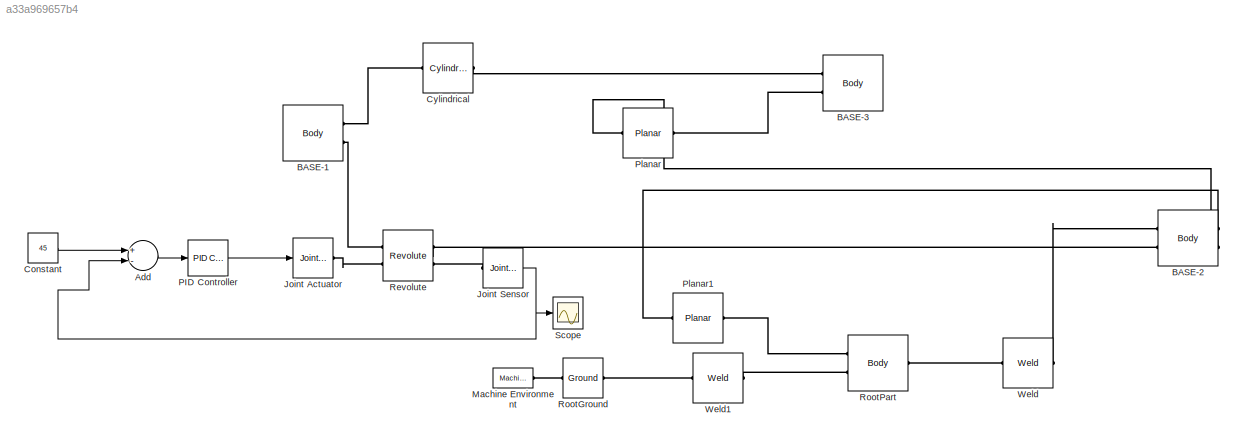
MODEL slx_a33a969657b4
KIND model
CONFIG AbsTol = auto
CONFIG FixedStep = auto
CONFIG MaxStep = auto
CONFIG MinStep = auto
CONFIG RelTol = 1e-3
CONFIG SampleTimeConstraint = Unconstrained
CONFIG Solver = ode45
CONFIG SolverMode = Auto
CONFIG SolverName = ode45
CONFIG StartTime = 0.0
CONFIG StopTime = 10.0
BLOCK [Sum] Add
  InputSameDT = off
  Inputs = +-
  OutDataTypeStr = Inherit: Inherit via internal rule
  Ports = [2, 1]
  SaturateOnIntegerOverflow = off
BLOCK [Reference] BASE-1  REF=mblibv1/Bodies/Body
  AttachedToCS = CS1
  BodyColor = [0.792157;0.819608;0.933333]
  BodyColorSelMode = COLORPALETTE
  CG = Right$CG$[-0.0707007 0.0450815 0.0472098]$WORLD$WORLD$m$[1 0 0;0 0 -1;0 1 0]$3x3 Transform$rad$WORLD$false$BASE-1::CG(AUTOGEN)
  CGPos = [-0.0707007 0.0450815 0.0472098]
  CGRot = [1 0 0;0 0 -1;0 1 0]
  CS0Pos = []
  CS0Rot = []
  CS10Pos = []
  CS10Rot = []
  CS11Pos = []
  CS11Rot = []
  CS12Pos = []
  CS12Rot = []
  CS13Pos = []
  CS13Rot = []
  CS14Pos = []
  CS14Rot = []
  CS15Pos = []
  CS15Rot = []
  CS16Pos = []
  CS16Rot = []
  CS17Pos = []
  CS17Rot = []
  CS18Pos = []
  CS18Rot = []
  CS19Pos = []
  CS19Rot = []
  CS1Pos = [-0.0707007 0.0450815 0.0297098]
  CS1Rot = [1 0 0;0 0 -1;0 1 0]
  CS20Pos = []
  CS20Rot = []
  CS2Pos = [-0.0707007 0.0450815 0.0297098]
  CS2Rot = [1 0 0;0 1 0;0 0 1]
  CS3Pos = [-0.0707007 0.0450815 0.0647098]
  CS3Rot = [1 0 0;0 1 0;0 0 1]
  CS4Pos = []
  CS4Rot = []
  CS5Pos = []
  CS5Rot = []
  CS6Pos = []
  CS6Rot = []
  CS7Pos = []
  CS7Rot = []
  CS8Pos = []
  CS8Rot = []
  CS9Pos = []
  CS9Rot = []
  ClassName = Body
  Density = 1
  DensityUnits = kg/m^3
  DensityUse = false
  DialogClass = MechanicalBodyBlock
  GraphicsFileName = Ensamblaje1 - BASE-1.STL
  GraphicsMode = GFXFILE
  Inertia = [2.42497e-06,0,0;0,1.34223e-06,0;0,0,2.42497e-06]
  InertiaUnits = kg*m^2
  Mass = 0.0171806
  MassUnits = kg
  PMImportedID = BASE-1
  Ports = [0, 0, 0, 0, 0, 0, 2]
  RConnTagsString = CS2|CS3
  Shape = Cylinder
  ShapeDims = [1 1]
  ShapeUnits = m
  ShapeUse = false
  SourceBlock = mblibv1/Bodies/Body
  SourceType = Body
  UpdateFromCAD = on
  WorkingFrames = Right$CS1$[-0.0707007 0.0450815 0.0297098]$WORLD$WORLD$m$[1 0 0;0 0 -1;0 1 0]$3x3 Transform$rad$WORLD$false$BASE-1::CS1(AUTOGEN)#Right$CS2$[-0.0707007 0.0450815 0.0297098]$WORLD$WORLD$m$[1 0 0;0 1 0;0 0 1]$3x3 Transform$rad$WORLD$true$BASE-1:-:BASE-3::BASE-1(AUTOGEN)#Right$CS3$[-0.0707007 0.0450815 0.0647098]$WORLD$WORLD$m$[1 0 0;0 1 0;0 0 1]$3x3 Transform$rad$WORLD$true$BASE-1:-:BASE-2::BASE-1(AU...<+6ch>
BLOCK [Reference] BASE-2  REF=mblibv1/Bodies/Body
  AttachedToCS = CS1
  BodyColor = [0.792157;0.819608;0.933333]
  BodyColorSelMode = COLORPALETTE
  CG = Right$CG$[-0.0707007 0.0307686 0.0547098]$WORLD$WORLD$m$[1 0 0;0 0 -1;0 1 0]$3x3 Transform$rad$WORLD$false$BASE-2::CG(AUTOGEN)
  CGPos = [-0.0707007 0.0307686 0.0547098]
  CGRot = [1 0 0;0 0 -1;0 1 0]
  CS0Pos = []
  CS0Rot = []
  CS10Pos = []
  CS10Rot = []
  CS11Pos = []
  CS11Rot = []
  CS12Pos = []
  CS12Rot = []
  CS13Pos = []
  CS13Rot = []
  CS14Pos = []
  CS14Rot = []
  CS15Pos = []
  CS15Rot = []
  CS16Pos = []
  CS16Rot = []
  CS17Pos = []
  CS17Rot = []
  CS18Pos = []
  CS18Rot = []
  CS19Pos = []
  CS19Rot = []
  CS1Pos = [-0.0702215 0.025 0.0447098]
  CS1Rot = [1 0 0;0 0 -1;0 1 0]
  CS20Pos = []
  CS20Rot = []
  CS2Pos = [-0.0707007 0.0307686 0.0547098]
  CS2Rot = [1 0 0;0 1 0;0 0 1]
  CS3Pos = [-0.0707007 0.0450815 0.0447098]
  CS3Rot = [1 0 0;0 1 0;0 0 1]
  CS4Pos = [-0.0707007 0.0450815 0.0647098]
  CS4Rot = [1 0 0;0 1 0;0 0 1]
  CS5Pos = [-0.0457007 0 0.0647098]
  CS5Rot = [1 0 0;0 1 0;0 0 1]
  CS6Pos = []
  CS6Rot = []
  CS7Pos = []
  CS7Rot = []
  CS8Pos = []
  CS8Rot = []
  CS9Pos = []
  CS9Rot = []
  ClassName = Body
  Density = 1
  DensityUnits = kg/m^3
  DensityUse = false
  DialogClass = MechanicalBodyBlock
  GraphicsFileName = Ensamblaje1 - BASE-2.STL
  GraphicsMode = GFXFILE
  Inertia = [2.39304e-05,0,0;0,3.43558e-05,0;0,0,1.41318e-05]
  InertiaUnits = kg*m^2
  LConnTagsString = CS2|CS4
  Mass = 0.055596
  MassUnits = kg
  PMImportedID = BASE-2
  Ports = [0, 0, 0, 0, 0, 2, 2]
  RConnTagsString = CS3|CS5
  Shape = Cylinder
  ShapeDims = [1 1]
  ShapeUnits = m
  ShapeUse = false
  SourceBlock = mblibv1/Bodies/Body
  SourceType = Body
  UpdateFromCAD = on
  WorkingFrames = Right$CS1$[-0.0702215 0.025 0.0447098]$WORLD$WORLD$m$[1 0 0;0 0 -1;0 1 0]$3x3 Transform$rad$WORLD$false$BASE-2::CS1(AUTOGEN)#Left$CS2$[-0.0707007 0.0307686 0.0547098]$WORLD$WORLD$m$[1 0 0;0 1 0;0 0 1]$3x3 Transform$rad$WORLD$true$BASE-2:-:Ensamblaje1/RootPart::BASE-2(AUTOGEN)#Right$CS3$[-0.0707007 0.0450815 0.0447098]$WORLD$WORLD$m$[1 0 0;0 1 0;0 0 1]$3x3 Transform$rad$WORLD$true$BASE-2:-:BASE-3::...<+292ch>
BLOCK [Reference] BASE-3  REF=mblibv1/Bodies/Body
  AttachedToCS = CS1
  BodyColor = [0.792157;0.819608;0.933333]
  BodyColorSelMode = COLORPALETTE
  CG = Right$CG$[-0.0535106 0.0755692 0.0347098]$WORLD$WORLD$m$[-0.650753 0 0.75929;-0.75929 0 -0.650753;0 -1 0]$3x3 Transform$rad$WORLD$false$BASE-3::CG(AUTOGEN)
  CGPos = [-0.0535106 0.0755692 0.0347098]
  CGRot = [-0.650753 0 0.75929;-0.75929 0 -0.650753;0 -1 0]
  CS0Pos = []
  CS0Rot = []
  CS10Pos = []
  CS10Rot = []
  CS11Pos = []
  CS11Rot = []
  CS12Pos = []
  CS12Rot = []
  CS13Pos = []
  CS13Rot = []
  CS14Pos = []
  CS14Rot = []
  CS15Pos = []
  CS15Rot = []
  CS16Pos = []
  CS16Rot = []
  CS17Pos = []
  CS17Rot = []
  CS18Pos = []
  CS18Rot = []
  CS19Pos = []
  CS19Rot = []
  CS1Pos = [-0.0363204 0.106057 0.0447098]
  CS1Rot = [-0.650753 0 0.75929;-0.75929 0 -0.650753;0 -1 0]
  CS20Pos = []
  CS20Rot = []
  CS2Pos = [-0.0707007 0.0450815 0.0297098]
  CS2Rot = [1 0 0;0 1 0;0 0 1]
  CS3Pos = [-0.0707007 0.0450815 0.0447098]
  CS3Rot = [1 0 0;0 1 0;0 0 1]
  CS4Pos = []
  CS4Rot = []
  CS5Pos = []
  CS5Rot = []
  CS6Pos = []
  CS6Rot = []
  CS7Pos = []
  CS7Rot = []
  CS8Pos = []
  CS8Rot = []
  CS9Pos = []
  CS9Rot = []
  ClassName = Body
  Density = 1
  DensityUnits = kg/m^3
  DensityUse = false
  DialogClass = MechanicalBodyBlock
  GraphicsFileName = Ensamblaje1 - BASE-3.STL
  GraphicsMode = GFXFILE
  Inertia = [2.54682e-05,0,-1.27885e-05;0,0.000107124,0;-1.27885e-05,0,8.76315e-05]
  InertiaUnits = kg*m^2
  LConnTagsString = CS2|CS3
  Mass = 0.089635
  MassUnits = kg
  PMImportedID = BASE-3
  Ports = [0, 0, 0, 0, 0, 2]
  Shape = Cylinder
  ShapeDims = [1 1]
  ShapeUnits = m
  ShapeUse = false
  SourceBlock = mblibv1/Bodies/Body
  SourceType = Body
  UpdateFromCAD = on
  WorkingFrames = Right$CS1$[-0.0363204 0.106057 0.0447098]$WORLD$WORLD$m$[-0.650753 0 0.75929;-0.75929 0 -0.650753;0 -1 0]$3x3 Transform$rad$WORLD$false$BASE-3::CS1(AUTOGEN)#Left$CS2$[-0.0707007 0.0450815 0.0297098]$WORLD$WORLD$m$[1 0 0;0 1 0;0 0 1]$3x3 Transform$rad$WORLD$true$BASE-1:-:BASE-3::BASE-3(AUTOGEN)#Left$CS3$[-0.0707007 0.0450815 0.0447098]$WORLD$WORLD$m$[1 0 0;0 1 0;0 0 1]$3x3 Transform$rad$WORLD$true$...<+32ch>
BLOCK [Constant] Constant
  Value = 45
BLOCK [Reference] Cylindrical  REF=mblibv1/Joints/Cylindrical
  ClassName = CylindricalJoint
  CutJoint = off
  DialogClass = JointBlock
  LConnTagsString = __newl0
  MarkAsCut = off
  NumSAPorts = 0
  P1Axis = [0,0,-1]
  PMImportedID = BASE-1:-:BASE-3
  Ports = [0, 0, 0, 0, 0, 1, 1]
  PrimitiveProps = P1$WORLD$[0,0,-1]$prismatic#R1$WORLD$[0,0,1]$revolute
  Primitives = prismatic
  R1Axis = [0,0,1]
  RConnTagsString = __newr0
  SourceBlock = mblibv1/Joints/Cylindrical
  SourceType = Cylindrical
  UpdateFromCAD = on
BLOCK [Reference] Joint Actuator  REF=mblibv1/Sensors & 
Actuators/Joint Actuator
  AccelerationUnits = m/s^2
  ActiveIO = on
  ActuationStyle = Force
  AngleUnits = deg
  ArcAccelerationUnits = deg/s^2
  ArcVelocityUnits = deg/s
  ClassName = JointActuator
  CoordPositionUnits = m
  DialogClass = MechanicalActuatorBlock
  ForceUnits = N
  PhysicalDomain = Mechanical
  PortType = blob
  Ports = [1, 0, 0, 0, 0, 0, 1]
  Primitive = R1
  ReferenceFrame = Absolute (World)
  SourceBlock = mblibv1/Sensors & \nActuators/Joint Actuator
  SourceType = Joint Actuator
  TorqueUnits = N-m
  UpdateFromCAD = off
  VelocityUnits = m/s
  Width = 1
BLOCK [Reference] Joint Sensor  REF=mblibv1/Sensors & 
Actuators/Joint Sensor
  Acceleration = off
  AccelerationUnits = m/s^2
  ActiveIO = on
  Angle = on
  AngleUnits = deg
  ArcAcceleration = off
  ArcAccelerationUnits = deg/s^2
  ArcVelocity = off
  ArcVelocityUnits = deg/s
  ClassName = JointSensor
  CoordPosition = on
  CoordPositionUnits = m
  DialogClass = MechanicalSensorBlock
  Force = off
  ForceUnits = N
  Muxed = on
  OutputVector = [1]
  PhysicalDomain = Mechanical
  PortType = blob
  Ports = [0, 1, 0, 0, 0, 1]
  Pose = off
  Primitive = R1
  Quaternion = on
  QuaternionDDT = off
  QuaternionDT = off
  QuaternionUnits = off
  ReactionForce = off
  ReactionForceUnits = N
  ReactionMoment = off
  ReactionMomentUnits = N-m
  ReactionReferenceFrame = Absolute (World)
  ReactionSensedSide = Base
  ReferenceFrame = Absolute (World)
  SourceBlock = mblibv1/Sensors & \nActuators/Joint Sensor
  SourceType = Joint Sensor
  Torque = off
  TorqueUnits = N-m
  UpdateFromCAD = off
  Velocity = off
  VelocityUnits = m/s
  Width = 1
BLOCK [Reference] Machine Environment  REF=mblibv1/Bodies/Machine
Environment
  AnalysisType = Forward dynamics
  AngularAssemblyTolerance = 1e-3
  AngularAssemblyToleranceUnits = rad
  BodyColorSelMode = Use model default
  BodyVisualizationType = Use model default body geometries
  ClassName = Environment
  ConstraintAbsTolerance = 1e-4
  ConstraintRelTolerance = 1e-4
  ConstraintSolverType = Stabilizing
  DefaultBodyColor = [1 0 0]
  DialogTemplateClass = MECH.MachineEnvironment
  Dimensionality = Auto-detect
  Gravity = [0 -9.81 0]
  GravityAsSignal = off
  GravityUnits = m/s^2
  LinearAssemblyTolerance = 1e-3
  LinearAssemblyToleranceUnits = m
  PerturbationSize = 1e-5
  PhysicalDomain = Mechanical
  PortType = env
  Ports = [0, 0, 0, 0, 0, 0, 1]
  RedundancyAnalysisTolerance = 1e-14
  RedundancyAnalysisToleranceType = Automatically select tolerance
  SourceBlock = mblibv1/Bodies/Machine\nEnvironment
  SourceType = Machine Environment
  StatePerturbationType = Fixed
  SyncWhenCopied = off
  UseRobustSingularityHandling = off
  VisualizeMachine = on
BLOCK [Reference] PID Controller  REF=simulink/Continuous/PID Controller
  AntiWindupMode = none
  Controller = PID
  ControllerParametersSource = internal
  D = 1
  DGainOutDataTypeStr = Inherit: Inherit via internal rule
  DOutDataTypeStr = Inherit: Inherit via internal rule
  DOutMax = []
  DOutMin = []
  DParamDataTypeStr = Inherit: Inherit via internal rule
  DParamMax = []
  DParamMin = []
  DProdOutDataTypeStr = Inherit: Inherit via internal rule
  DifferentiatorICPrevScaledInput = 0
  DifferentiatorOutDataTypeStr = Inherit: Inherit via internal rule
  DifferentiatorOutMax = []
  DifferentiatorOutMin = []
  ExternalReset = none
  FilterContinuousStateAttributes = ''
  FilterMethod = Forward Euler
  FilterOutDataTypeStr = Inherit: Inherit via internal rule
  FilterOutMax = []
  FilterOutMin = []
  FilterRTWStateStorageClass = Auto
  FilterStateMustResolveToSignalObject = off
  Form = Parallel
  I = 1
  IGainOutDataTypeStr = Inherit: Inherit via internal rule
  IOutDataTypeStr = Inherit: Inherit via internal rule
  IOutMax = []
  IOutMin = []
  IParamDataTypeStr = Inherit: Inherit via internal rule
  IParamMax = []
  IParamMin = []
  IProdOutDataTypeStr = Inherit: Inherit via internal rule
  IgnoreLimit = off
  InitialConditionForFilter = 0
  InitialConditionForIntegrator = 0
  InitialConditionSource = internal
  IntegratorContinuousStateAttributes = ''
  IntegratorMethod = Forward Euler
  IntegratorOutDataTypeStr = Inherit: Inherit via internal rule
  IntegratorOutMax = []
  IntegratorOutMin = []
  IntegratorRTWStateStorageClass = Auto
  IntegratorStateMustResolveToSignalObject = off
  Kb = 1
  KbOutDataTypeStr = Inherit: Inherit via internal rule
  KbOutMax = []
  KbOutMin = []
  KbParamDataTypeStr = Inherit: Inherit via internal rule
  KbParamMax = []
  KbParamMin = []
  Kt = 1
  KtOutDataTypeStr = Inherit: Inherit via internal rule
  KtOutMax = []
  KtOutMin = []
  KtParamDataTypeStr = Inherit: Inherit via internal rule
  KtParamMax = []
  KtParamMin = []
  LimitOutput = off
  LinearizeAsGain = on
  LockScale = off
  LowerSaturationLimit = -inf
  N = 100
  NGainOutDataTypeStr = Inherit: Inherit via internal rule
  NOutDataTypeStr = Inherit: Inherit via internal rule
  NOutMax = []
  NOutMin = []
  NParamDataTypeStr = Inherit: Inherit via internal rule
  NParamMax = []
  NParamMin = []
  NProdOutDataTypeStr = Inherit: Inherit via internal rule
  P = 1
  PGainOutDataTypeStr = Inherit: Inherit via internal rule
  POutDataTypeStr = Inherit: Inherit via internal rule
  POutMax = []
  POutMin = []
  PParamDataTypeStr = Inherit: Inherit via internal rule
  PParamMax = []
  PParamMin = []
  PProdOutDataTypeStr = Inherit: Inherit via internal rule
  Ports = [1, 1]
  RndMeth = Floor
  SampleTime = -1
  SaturateOnIntegerOverflow = off
  SaturationOutDataTypeStr = Inherit: Same as input
  SaturationOutMax = []
  SaturationOutMin = []
  SourceBlock = simulink/Continuous/PID Controller
  SourceType = PID 1dof
  SumAccumDataTypeStr = Inherit: Inherit via internal rule
  SumDAccumDataTypeStr = Inherit: Inherit via internal rule
  SumDOutDataTypeStr = Inherit: Inherit via internal rule
  SumDOutMax = []
  SumDOutMin = []
  SumI1AccumDataTypeStr = Inherit: Inherit via internal rule
  SumI1OutDataTypeStr = Inherit: Inherit via internal rule
  SumI1OutMax = []
  SumI1OutMin = []
  SumI2AccumDataTypeStr = Inherit: Inherit via internal rule
  SumI2OutDataTypeStr = Inherit: Inherit via internal rule
  SumI2OutMax = []
  SumI2OutMin = []
  SumI3AccumDataTypeStr = Inherit: Inherit via internal rule
  SumI3OutDataTypeStr = Inherit: Inherit via internal rule
  SumI3OutMax = []
  SumI3OutMin = []
  SumOutDataTypeStr = Inherit: Inherit via internal rule
  SumOutMax = []
  SumOutMin = []
  TimeDomain = Continuous-time
  TrackingMode = off
  UpperSaturationLimit = inf
  UseFilter = on
  ZeroCross = on
BLOCK [Reference] Planar  REF=mblibv1/Joints/Planar
  ClassName = PlanarJoint
  CutJoint = off
  DialogClass = JointBlock
  LConnTagsString = __newl0
  MarkAsCut = off
  NumSAPorts = 0
  P1Axis = [-1,0,0]
  P2Axis = [0,-1,0]
  PMImportedID = BASE-2:-:BASE-3
  Ports = [0, 0, 0, 0, 0, 1, 1]
  PrimitiveProps = P1$WORLD$[-1,0,0]$prismatic#P2$WORLD$[0,-1,0]$prismatic#R1$WORLD$[0,0,-1]$revolute
  Primitives = prismatic_prismatic
  R1Axis = [0,0,-1]
  RConnTagsString = __newr0
  SourceBlock = mblibv1/Joints/Planar
  SourceType = Planar
  UpdateFromCAD = on
BLOCK [Reference] Planar1  REF=mblibv1/Joints/Planar
  ClassName = PlanarJoint
  CutJoint = off
  DialogClass = JointBlock
  LConnTagsString = __newl0
  MarkAsCut = off
  NumSAPorts = 0
  P1Axis = [-1,0,0]
  P2Axis = [0,0,1]
  PMImportedID = :-:Ensamblaje1/RootPart
  Ports = [0, 0, 0, 0, 0, 1, 1]
  PrimitiveProps = P1$WORLD$[-1,0,0]$prismatic#P2$WORLD$[0,0,1]$prismatic#R1$WORLD$[0,-1,0]$revolute
  Primitives = prismatic_prismatic
  R1Axis = [0,-1,0]
  RConnTagsString = __newr0
  SourceBlock = mblibv1/Joints/Planar
  SourceType = Planar
  UpdateFromCAD = on
BLOCK [Reference] Revolute  REF=mblibv1/Joints/Revolute
  ClassName = Joint
  CutJoint = off
  DialogClass = JointBlock
  LConnTagsString = __newl0|SA1
  MarkAsCut = off
  NumSAPorts = 2
  PMImportedID = BASE-1:-:BASE-2
  Ports = [0, 0, 0, 0, 0, 2, 2]
  PrimitiveProps = R1$World$[0,0,1]$revolute
  Primitives = prismatic
  R1Axis = [0,0,1]
  RConnTagsString = __newr0|SA1
  SourceBlock = mblibv1/Joints/Revolute
  SourceType = Revolute
  UpdateFromCAD = on
BLOCK [Reference] RootGround  REF=mblibv1/Bodies/Ground
  ClassName = Ground
  CoordPosition = [-0.0612135,0.0570081,0.0428785]
  CoordPositionUnits = m
  DialogClass = GroundBlock
  LeftPortType = env
  MachineId = [1 0]
  PMImportedID = RootGround
  ParameterChecksum = [3105708821, 3775280186, 3027250476, 4258313790]
  PhysicalDomain = Mechanical
  Ports = [0, 0, 0, 0, 0, 1, 1]
  RightPortType = workingframe
  ShowEnvPort = on
  SourceBlock = mblibv1/Bodies/Ground
  SourceType = Ground
  StateVectorMgrId = 0
  TopologyChecksum = [1894176247, 3658313687, 2527774705, 1067019164]
  UpdateFromCAD = on
  UserDataPersistent = on
BLOCK [Reference] RootPart  REF=mblibv1/Bodies/Body
  AttachedToCS = CS1
  BodyColor = [1;0;0]
  BodyColorSelMode = MACHINE_DEFAULT
  CG = Right$CG$[-0.0612135 0.0570081 0.0428785]$WORLD$WORLD$m$[1 0 0;0 1 0;0 0 1]$3x3 Transform$rad$WORLD$false$Ensamblaje1/RootPart::CG(AUTOGEN)
  CGPos = [-0.0612135 0.0570081 0.0428785]
  CGRot = [1 0 0;0 1 0;0 0 1]
  CS0Pos = []
  CS0Rot = []
  CS10Pos = []
  CS10Rot = []
  CS11Pos = []
  CS11Rot = []
  CS12Pos = []
  CS12Rot = []
  CS13Pos = []
  CS13Rot = []
  CS14Pos = []
  CS14Rot = []
  CS15Pos = []
  CS15Rot = []
  CS16Pos = []
  CS16Rot = []
  CS17Pos = []
  CS17Rot = []
  CS18Pos = []
  CS18Rot = []
  CS19Pos = []
  CS19Rot = []
  CS1Pos = [0 0 0]
  CS1Rot = [1 0 0;0 1 0;0 0 1]
  CS20Pos = []
  CS20Rot = []
  CS2Pos = [-0.0707007 0.0307686 0.0547098]
  CS2Rot = [1 0 0;0 1 0;0 0 1]
  CS3Pos = [-0.0457007 0 0.0647098]
  CS3Rot = [1 0 0;0 1 0;0 0 1]
  CS4Pos = [-0.0612135 0.0570081 0.0428785]
  CS4Rot = [1 0 0;0 1 0;0 0 1]
  CS5Pos = []
  CS5Rot = []
  CS6Pos = []
  CS6Rot = []
  CS7Pos = []
  CS7Rot = []
  CS8Pos = []
  CS8Rot = []
  CS9Pos = []
  CS9Rot = []
  ClassName = Body
  Density = 1
  DensityUnits = kg/m^3
  DensityUse = false
  DialogClass = MechanicalBodyBlock
  GraphicsMode = MACHINE_DEFAULT
  Inertia = [0,0,0;0,0,0;0,0,0]
  InertiaUnits = kg*m^2
  LConnTagsString = CS3|CS4
  Mass = 0
  MassUnits = kg
  PMImportedID = Ensamblaje1/RootPart
  Ports = [0, 0, 0, 0, 0, 2, 1]
  RConnTagsString = CS2
  Shape = Cylinder
  ShapeDims = [1 1]
  ShapeUnits = m
  ShapeUse = false
  SourceBlock = mblibv1/Bodies/Body
  SourceType = Body
  UpdateFromCAD = on
  WorkingFrames = Right$CS1$[0 0 0]$WORLD$WORLD$m$[1 0 0;0 1 0;0 0 1]$3x3 Transform$rad$WORLD$false$Ensamblaje1/RootPart::CS1(AUTOGEN)#Right$CS2$[-0.0707007 0.0307686 0.0547098]$WORLD$WORLD$m$[1 0 0;0 1 0;0 0 1]$3x3 Transform$rad$WORLD$true$BASE-2:-:Ensamblaje1/RootPart::Ensamblaje1/RootPart(AUTOGEN)#Left$CS3$[-0.0457007 0 0.0647098]$WORLD$WORLD$m$[1 0 0;0 1 0;0 0 1]$3x3 Transform$rad$WORLD$true$:-:Ensamblaje1/Root...<+205ch>
BLOCK [Scope] Scope
  Floating = off
  NumInputPorts = 1
  Ports = [1]
BLOCK [Reference] Weld  REF=mblibv1/Joints/Weld
  ClassName = Joint
  CutJoint = off
  DialogClass = JointBlock
  LConnTagsString = __newl0
  MarkAsCut = off
  NumSAPorts = 0
  PMImportedID = BASE-2:-:Ensamblaje1/RootPart
  Ports = [0, 0, 0, 0, 0, 1, 1]
  PrimitiveProps = W$WORLD$[0.57735,0.57735,0.57735]$weld
  Primitives = weld
  RConnTagsString = __newr0
  SourceBlock = mblibv1/Joints/Weld
  SourceType = Weld
  UpdateFromCAD = on
  WAxis = [0.57735,0.57735,0.57735]
BLOCK [Reference] Weld1  REF=mblibv1/Joints/Weld
  ClassName = Joint
  CutJoint = off
  DialogClass = JointBlock
  LConnTagsString = __newl0
  MarkAsCut = off
  NumSAPorts = 0
  PMImportedID = Ensamblaje1/RootPart:-:RootGround
  Ports = [0, 0, 0, 0, 0, 1, 1]
  PrimitiveProps = W$WORLD$[0.57735,0.57735,0.57735]$weld
  Primitives = weld
  RConnTagsString = __newr0
  SourceBlock = mblibv1/Joints/Weld
  SourceType = Weld
  UpdateFromCAD = on
  WAxis = [0.57735,0.57735,0.57735]
LINE Add:1 -> PID Controller:1
LINE Constant:1 -> Add:1
NET Joint Sensor:1 -> Add:2, Scope:1
LINE PID Controller:1 -> Joint Actuator:1
PLINE BASE-1:RConn1 -- Cylindrical:LConn1
PLINE BASE-1:RConn2 -- Revolute:LConn1
PLINE BASE-2:LConn1 -- Weld:RConn1
PLINE BASE-2:LConn2 -- Revolute:RConn1
PLINE BASE-2:RConn1 -- Planar:LConn1
PLINE BASE-2:RConn2 -- Planar1:LConn1
PLINE BASE-3:LConn1 -- Cylindrical:RConn1
PLINE BASE-3:LConn2 -- Planar:RConn1
PLINE Joint Actuator:RConn1 -- Revolute:LConn2
PLINE Joint Sensor:LConn1 -- Revolute:RConn2
PLINE Machine Environment:RConn1 -- RootGround:LConn1
PLINE Planar1:RConn1 -- RootPart:LConn1
PLINE RootGround:RConn1 -- Weld1:LConn1
PLINE RootPart:LConn2 -- Weld1:RConn1
PLINE RootPart:RConn1 -- Weld:LConn1
note: NET lines group one-source signal fan-out (src -> all destinations, sorted); 1:1 wires keep LINE
